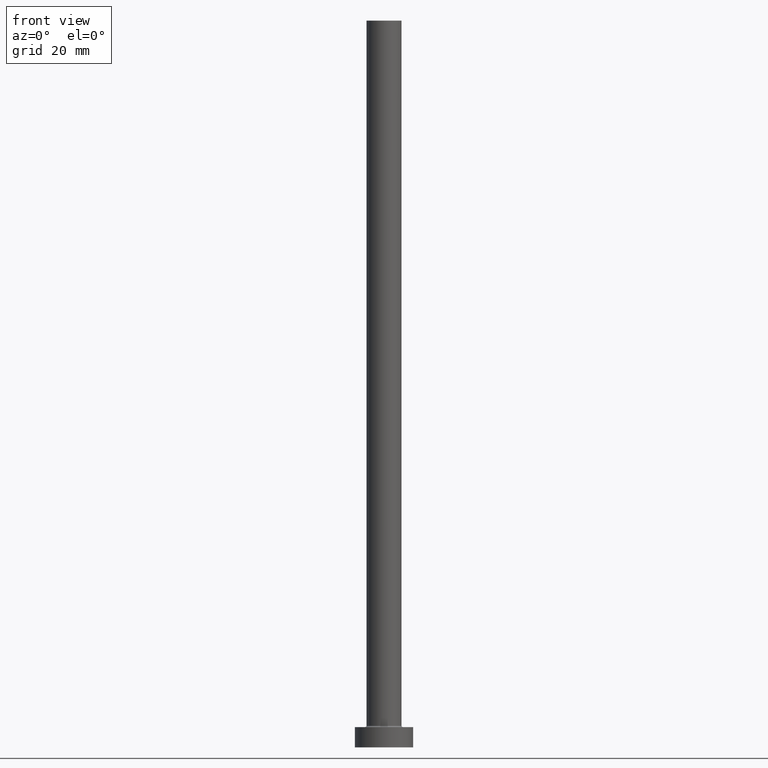
[diagram: clean part render]
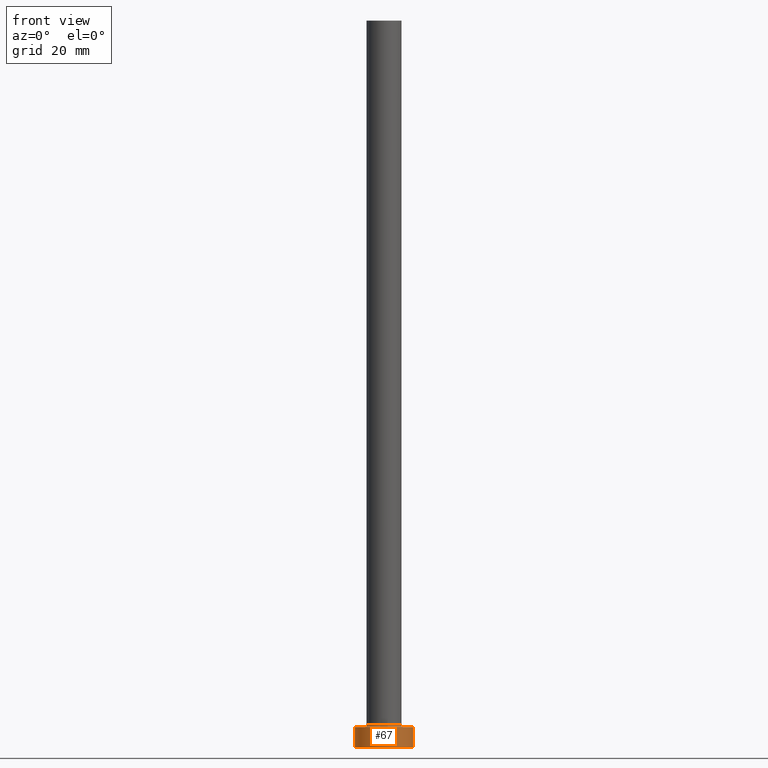
[diagram: same view with one face highlighted and labeled with its STEP entity id]
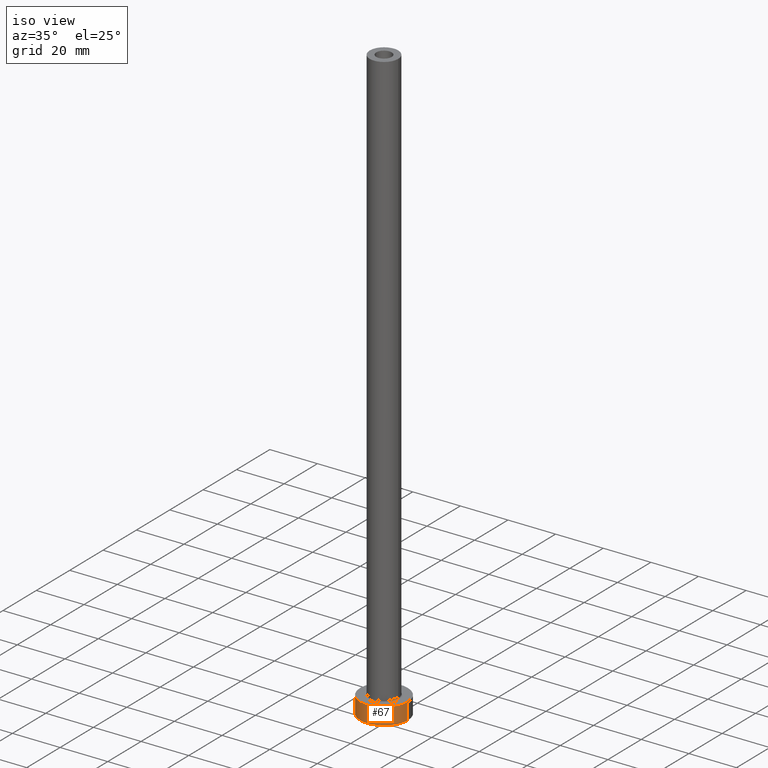
[diagram: same view with one face highlighted and labeled with its STEP entity id]
A machine part, front view. The second image highlights one B-rep face of the part: STEP entity #67.
A second angle (iso view) of the same face is appended — the face is thin or edge-on in the first view.
In plain terms, the highlighted cylindrical surface (edge-blend (fillet) strip) has radius 10 mm, axis along (-0, -0, -1).
Its self-contained STEP definition (entity closure, byte-faithful):
#14 = DIRECTION ( 'NONE',  ( 1.000000000000000000, 0.000000000000000000, 0.000000000000000000 ) ) ;
#18 = CARTESIAN_POINT ( 'NONE',  ( 0.000000000000000000, 0.000000000000000000, 0.000000000000000000 ) ) ;
#24 = CARTESIAN_POINT ( 'NONE',  ( -10.00000000000000000, 0.000000000000000000, 7.000000000000000000 ) ) ;
#36 = DIRECTION ( 'NONE',  ( -0.000000000000000000, -0.000000000000000000, -1.000000000000000000 ) ) ;
#57 = AXIS2_PLACEMENT_3D ( 'NONE', #18, #151, #124 ) ;
#59 = LINE ( 'NONE', #24, #278 ) ;
#60 = LINE ( 'NONE', #355, #412 ) ;
#64 = CARTESIAN_POINT ( 'NONE',  ( 0.000000000000000000, 0.000000000000000000, 7.000000000000000000 ) ) ;
#67 = ADVANCED_FACE ( 'NONE', ( #345 ), #461, .T. ) ;
#89 = CARTESIAN_POINT ( 'NONE',  ( 10.00000000000000000, 1.224646799147353256E-15, 7.000000000000000000 ) ) ;
#117 = CIRCLE ( 'NONE', #386, 10.00000000000000000 ) ;
#118 = VERTEX_POINT ( 'NONE', #238 ) ;
#124 = DIRECTION ( 'NONE',  ( 1.000000000000000000, 0.000000000000000000, 0.000000000000000000 ) ) ;
#127 = DIRECTION ( 'NONE',  ( 0.000000000000000000, 0.000000000000000000, 1.000000000000000000 ) ) ;
#141 = EDGE_CURVE ( 'NONE', #178, #118, #60, .T. ) ;
#151 = DIRECTION ( 'NONE',  ( 0.000000000000000000, 0.000000000000000000, 1.000000000000000000 ) ) ;
#152 = ORIENTED_EDGE ( 'NONE', *, *, #193, .T. ) ;
#178 = VERTEX_POINT ( 'NONE', #89 ) ;
#182 = CIRCLE ( 'NONE', #57, 10.00000000000000000 ) ;
#193 = EDGE_CURVE ( 'NONE', #456, #118, #182, .T. ) ;
#203 = DIRECTION ( 'NONE',  ( -1.000000000000000000, 0.000000000000000000, 0.000000000000000000 ) ) ;
#238 = CARTESIAN_POINT ( 'NONE',  ( 10.00000000000000000, 1.224646799147353256E-15, 0.000000000000000000 ) ) ;
#246 = ORIENTED_EDGE ( 'NONE', *, *, #263, .F. ) ;
#263 = EDGE_CURVE ( 'NONE', #332, #178, #117, .T. ) ;
#277 = CARTESIAN_POINT ( 'NONE',  ( -10.00000000000000000, 0.000000000000000000, 7.000000000000000000 ) ) ;
#278 = VECTOR ( 'NONE', #346, 1000.000000000000000 ) ;
#302 = EDGE_LOOP ( 'NONE', ( #375, #246, #427, #152 ) ) ;
#309 = DIRECTION ( 'NONE',  ( -0.000000000000000000, -0.000000000000000000, -1.000000000000000000 ) ) ;
#330 = CARTESIAN_POINT ( 'NONE',  ( 0.000000000000000000, 0.000000000000000000, 7.000000000000000000 ) ) ;
#332 = VERTEX_POINT ( 'NONE', #277 ) ;
#345 = FACE_OUTER_BOUND ( 'NONE', #302, .T. ) ;
#346 = DIRECTION ( 'NONE',  ( -0.000000000000000000, -0.000000000000000000, -1.000000000000000000 ) ) ;
#355 = CARTESIAN_POINT ( 'NONE',  ( 10.00000000000000000, 1.224646799147353256E-15, 7.000000000000000000 ) ) ;
#375 = ORIENTED_EDGE ( 'NONE', *, *, #141, .F. ) ;
#386 = AXIS2_PLACEMENT_3D ( 'NONE', #330, #127, #14 ) ;
#395 = AXIS2_PLACEMENT_3D ( 'NONE', #64, #309, #203 ) ;
#412 = VECTOR ( 'NONE', #36, 1000.000000000000000 ) ;
#420 = CARTESIAN_POINT ( 'NONE',  ( -10.00000000000000000, 0.000000000000000000, 0.000000000000000000 ) ) ;
#427 = ORIENTED_EDGE ( 'NONE', *, *, #458, .T. ) ;
#456 = VERTEX_POINT ( 'NONE', #420 ) ;
#458 = EDGE_CURVE ( 'NONE', #332, #456, #59, .T. ) ;
#461 = CYLINDRICAL_SURFACE ( 'NONE', #395, 10.00000000000000000 ) ;